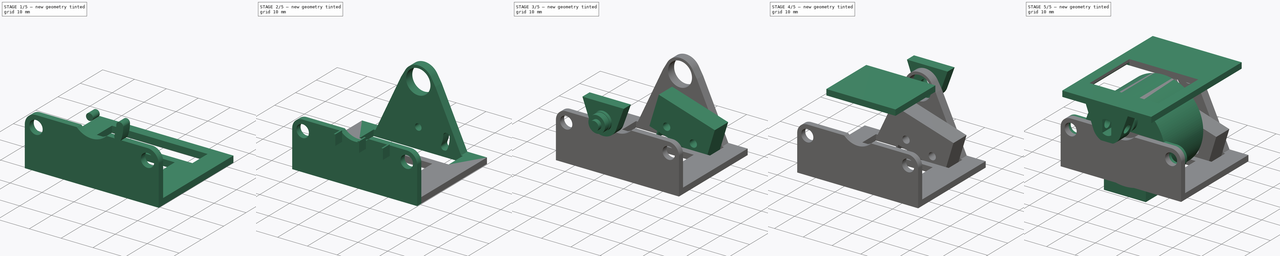
[diagram: build sequence overview — one tinted view per stage of 5, left to right]
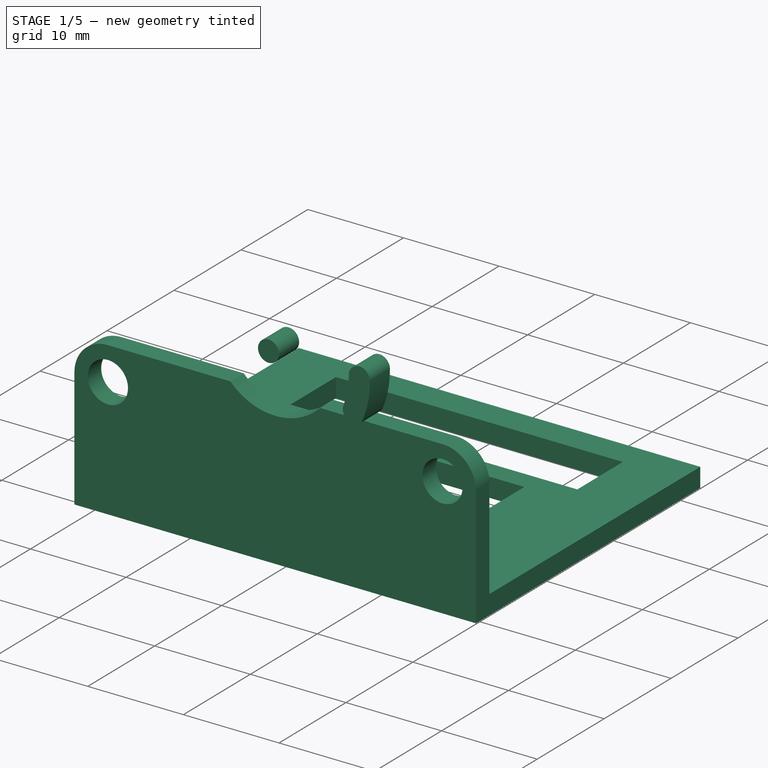
[diagram: stage 1 of 5 — iso view after this stage's code; geometry added in this stage tinted green]
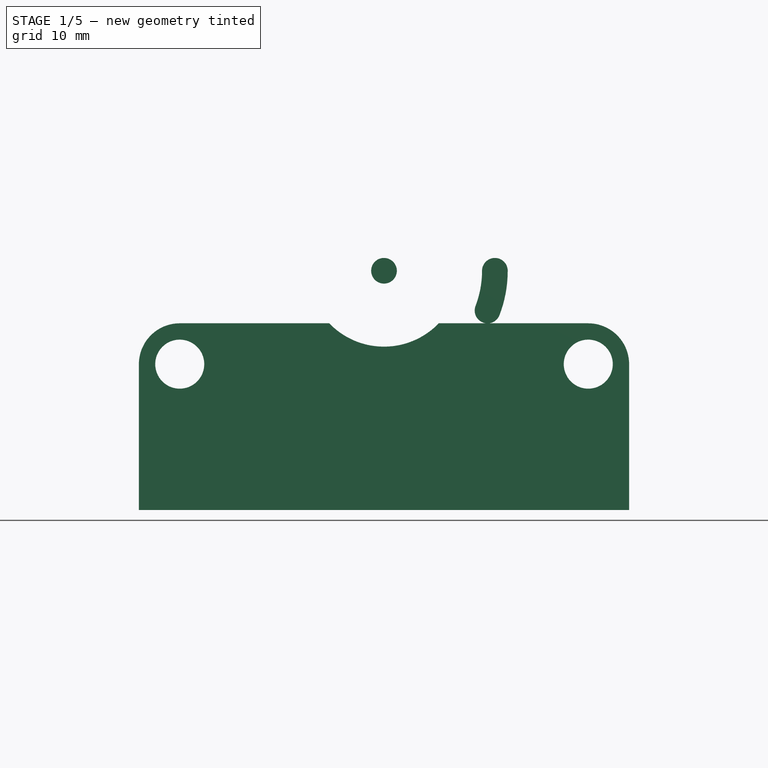
[diagram: stage 1 of 5 — front view after this stage's code; geometry added in this stage tinted green]
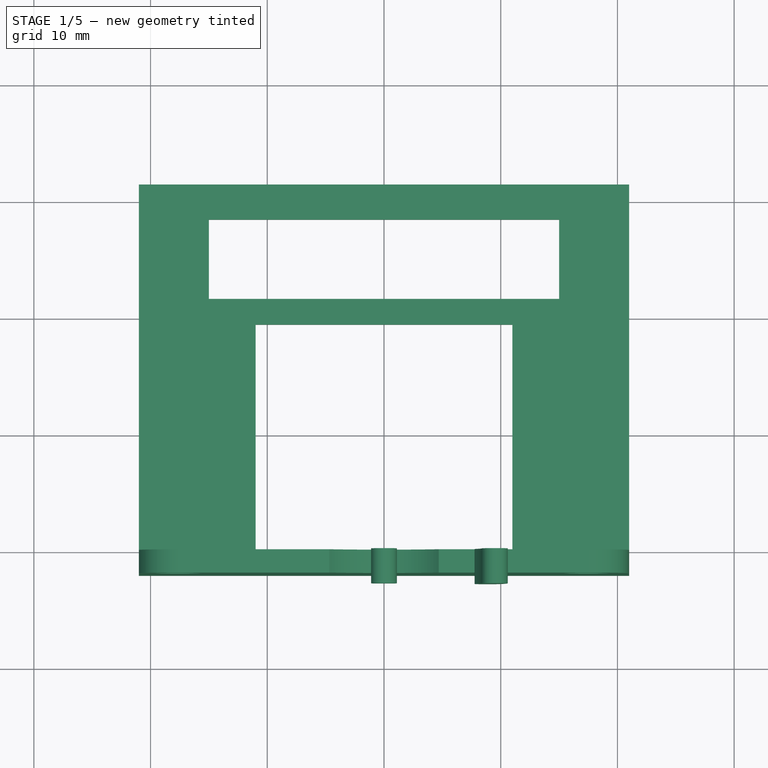
[diagram: stage 1 of 5 — top view after this stage's code; geometry added in this stage tinted green]
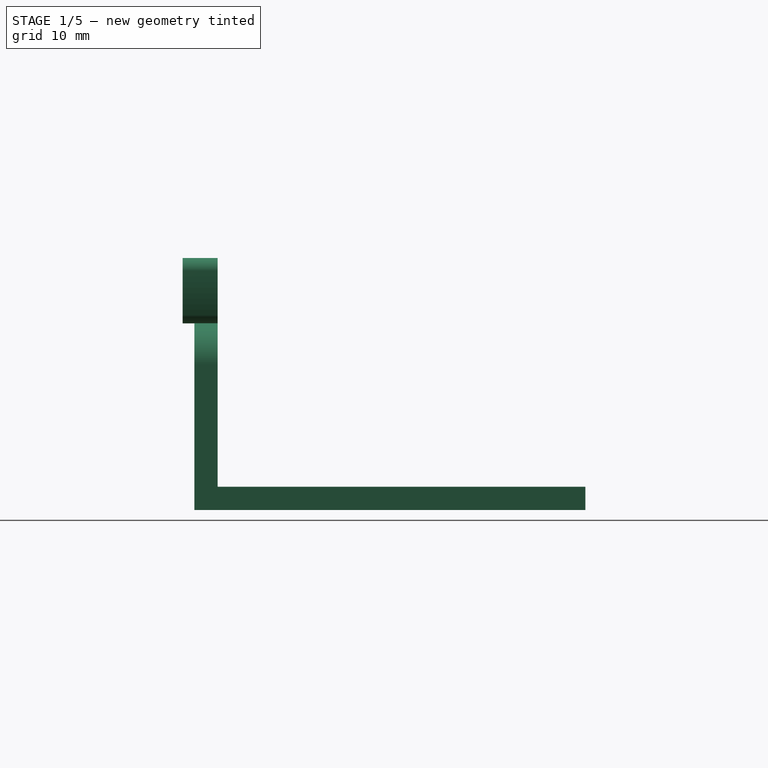
[diagram: stage 1 of 5 — right view after this stage's code; geometry added in this stage tinted green]
FCSTD DOCUMENT  (FreeCAD 0.18R4 (GitTag))
Label: pixle
License: All rights reserved
LicenseURL: http://en.wikipedia.org/wiki/All_rights_reserved
objects: Part::Cylinder×11, Part::Compound×11, Spreadsheet::Sheet×10, Part::Box×10, Part::Cut×10, Sketcher::SketchObject×8, Part::Extrusion×8, Part::MultiFuse×5, Part::Chamfer×1
note: 64 computed .brp shape members not serialized (recipe doc carries the construction recipe); baked Part::Feature solids carry a one-line shape summary decoded from their .brp

FEATURE [Sketcher::SketchObject] Sketch003  label="motorMountSketch"
  Placement = pos=(0,0,0) rot=(1,0,0;1.5708rad)
  expr: Constraints[25] = motorMount_sheet.height - motor_sheet.bracketOutterRadius
  expr: Constraints[17] = motor_sheet.bracketOutterRadius
  expr: Constraints[9] = motor_sheet.bracketLength
  expr: Constraints[16] = motor_sheet.bracketOutterRadius
  expr: Constraints[11] = motor_sheet.bracketOutterRadius
  expr: Constraints[7] = motor_sheet.bracketOutterRadius
  expr: Constraints[5] = consts.m4_shankRadius
  expr: Constraints[4] = consts.m4_shankRadius
  expr: Constraints[3] = motor_sheet.bracketLength
  expr: Constraints[1] = motor_sheet.bracketLength
  expr: Constraints[12] = motor_sheet.bracketLength
  sketch-geometry (8):
    g0: Circle CenterX=17.5 CenterY=0 CenterZ=0 NormalX=0 NormalY=0 NormalZ=1 AngleXU=0 Radius=2.1
    g1: Circle CenterX=-17.5 CenterY=0 CenterZ=0 NormalX=0 NormalY=0 NormalZ=1 AngleXU=0 Radius=2.1
    g2: ArcOfCircle CenterX=-17.5 CenterY=0 CenterZ=0 NormalX=0 NormalY=0 NormalZ=1 AngleXU=0 Radius=3.5 StartAngle=1.5708 EndAngle=3.1416
    g3: ArcOfCircle CenterX=17.5 CenterY=0 CenterZ=0 NormalX=0 NormalY=0 NormalZ=1 AngleXU=0 Radius=3.5 StartAngle=6.28319 EndAngle=7.85398
    g4: LineSegment StartX=-17.5 StartY=3.5 StartZ=0 EndX=17.5 EndY=3.5 EndZ=0
    g5: LineSegment StartX=-21 StartY=-2.25161e-05 StartZ=0 EndX=-21 EndY=-12.5 EndZ=0
    g6: LineSegment StartX=21 StartY=-3.49178e-08 StartZ=0 EndX=21 EndY=-12.5 EndZ=0
    g7: LineSegment StartX=-21 StartY=-12.5 StartZ=0 EndX=21 EndY=-12.5 EndZ=0
  constraints (26):
    c: PointOnObject(g0,g-1)
    c: DistanceX(g0) = 17.5
    c: PointOnObject(g1,g-1)
    c: DistanceX(g1,g-1) = 17.5
    c: Radius(g0) = 2.1
    c: Radius(g1) = 2.1
    c: PointOnObject(g2,g-1)
    c: Radius(g2) = 3.5
    c: Angle(g2) = 1.5708
    c: DistanceX(g2,g-1) = 17.5
    c: PointOnObject(g3,g-1)
    c: Radius(g3) = 3.5
    c: DistanceX(g-1,g3) = 17.5
    c: Angle(g3) = 1.5708
    c: Coincident(g4,g2)
    c: Coincident(g4,g3)
    c: DistanceY(g2) = 3.5
    c: DistanceY(g0,g3) = 3.5
    c: Coincident(g5,g2)
    c: Vertical(g5)
    c: Coincident(g6,g3)
    c: Vertical(g6)
    c: Coincident(g7,g5)
    c: Coincident(g7,g6)
    c: Horizontal(g7)
    c: DistanceY(g5,g5) = 12.5
FEATURE [Part::Extrusion] Extrude004  label="motorMountBase"
  Base = -> Sketch003
  Dir = (0,-1,0)
  DirMode = 0
  FaceMakerClass = Part::FaceMakerBullseye
  LengthFwd = 2
  LengthRev = 0
  Solid = true
  Symmetric = false
  expr: LengthFwd = motorMount_sheet.thickness
FEATURE [Part::Cylinder] Cylinder005  label="motorMountCutout"
  Angle = 360
  AttacherType = Attacher::AttachEngine3D
  Height = 2
  Placement = pos=(0,0,8) rot=(1,0,0;1.5708rad)
  Radius = 6.5
  expr: Radius = motor_sheet.shaftSpacerRadius + motorMount_sheet.cutout
  expr: Placement.Base.z = motor_sheet.shaftOffset
  expr: Height = consts.motorMount_thickness
FEATURE [Part::Cut] Cut004  label="motorMount"
  Base = -> Extrude004
  Placement = pos=(0,0,-8) rot=(0,0,1;0rad)
  Tool = -> Cylinder005
  expr: Placement.Base.z = -motor_sheet.shaftOffset
FEATURE [Part::Box] Box005  label="BottomPlateBase"
  AttacherType = Attacher::AttachEngine3D
  Height = 2
  Length = 42
  Placement = pos=(-21,0,-20.5) rot=(0,0,1;0rad)
  Width = 31.5
  expr: Width = pixleBase_sheet.width
  expr: Length = pixleBase_sheet.length
  expr: Placement.Base.x = -Length / 2
  expr: Height = pixleBase_sheet.plateHeight
  expr: Placement.Base.z = -motor_sheet.shaftOffset - motorMount_sheet.height + motor_sheet.bracketOutterRadius
FEATURE [Part::Box] Box006  label="MotorHole"
  AttacherType = Attacher::AttachEngine3D
  Height = 2
  Length = 22
  Placement = pos=(-11,0,-20.5) rot=(0,0,1;0rad)
  Width = 19.5
  expr: Length = bottomPlate_sheet.motorHole
  expr: Width = motor_sheet.bodyDepth + bottomPlate_sheet.motorHoleTollarance
  expr: Placement.Base.x = -Length / 2
  expr: Placement.Base.z = -motor_sheet.shaftOffset - motorMount_sheet.height + motor_sheet.bracketOutterRadius
  expr: Height = bottomPlate_sheet.thinkness
FEATURE [Sketcher::SketchObject] Sketch006  label="bearingCoupler_limitSwitchMountSketch"
  Placement = pos=(0,0,0) rot=(1,0,0;1.5708rad)
  expr: Constraints[1] = bearingCoupler_sheet.limitSwitchScrewRadius
  expr: Constraints[10] = bearingCoupler_sheet.limitSwitchScrewRadius
  expr: Constraints[13] = limitSwitch_sheet.holeSpacing
  expr: Constraints[7] = limitSwitch_sheet.holeSpacing
  sketch-geometry (5):
    g0: Circle CenterX=0 CenterY=0 CenterZ=0 NormalX=0 NormalY=0 NormalZ=1 AngleXU=0 Radius=1.1
    g1: ArcOfCircle CenterX=0 CenterY=0 CenterZ=0 NormalX=0 NormalY=0 NormalZ=1 AngleXU=0 Radius=8.4 StartAngle=3.14159 EndAngle=3.50811
    g2: ArcOfCircle CenterX=0 CenterY=0 CenterZ=0 NormalX=0 NormalY=0 NormalZ=1 AngleXU=0 Radius=10.6 StartAngle=3.14159 EndAngle=3.50811
    g3: ArcOfCircle CenterX=-9.5 CenterY=0 CenterZ=0 NormalX=0 NormalY=0 NormalZ=1 AngleXU=0 Radius=1.1 StartAngle=0 EndAngle=3.14159
    g4: ArcOfCircle CenterX=-8.86902 CenterY=-3.40448 CenterZ=0 NormalX=0 NormalY=0 NormalZ=1 AngleXU=0 Radius=1.1 StartAngle=3.50811 EndAngle=6.6497
  constraints (15):
    c: Coincident(g0,g-1)
    c: Radius(g0) = 1.1
    c: Coincident(g1,g0)
    c: Coincident(g2,g0)
    c: PointOnObject(g3,g-1)
    c: Coincident(g3,g1)
    c: Coincident(g3,g2)
    c: DistanceX(g3,g0) = 9.5
    c: DistanceY(g1,g0) = 0
    c: DistanceY(g2,g0) = 0
    c: Radius(g3) = 1.1
    c: Coincident(g4,g1)
    c: Coincident(g4,g2)
    c: Distance(g0,g4) = 9.5
    c: Angle(g4) = 3.14159
FEATURE [Part::Extrusion] Extrude007  label="bearingCoupler_limitSwitchMountExtrusion"
  Base = -> Sketch006
  Dir = (0,1,0)
  DirMode = 0
  FaceMakerClass = Part::FaceMakerBullseye
  LengthFwd = 3
  LengthRev = 0
  Placement = pos=(0,0,0) rot=(0,0,1;3.14159rad)
  Solid = true
  Symmetric = false
  expr: LengthFwd = bearingCoupler_sheet.thinkness
FEATURE [Part::Box] Box011  label="LimitSwitchHole"
  AttacherType = Attacher::AttachEngine3D
  Height = 2
  Length = 30
  Placement = pos=(-15,21.7,-20.5) rot=(0,0,1;0rad)
  Width = 6.8
  expr: Length = bottomPlate_sheet.limitSwitchCutoutLength
  expr: Width = limitSwitch_sheet.width + bottomPlate_sheet.limitSwitchCutoutTollarance
  expr: Placement.Base.y = -Width + BottomPlateBase.Width - bearingCoupler_sheet.thinkness
  expr: Placement.Base.x = -Length / 2
  expr: Height = bottomPlate_sheet.thinkness
  expr: Placement.Base.z = -motor_sheet.shaftOffset - motorMount_sheet.height + motor_sheet.bracketOutterRadius
FEATURE [Part::Compound] Compound001  label="BottomPlateCutouts"
  Links = -> [Box006,Box011]
FEATURE [Part::Cut] Cut012  label="bottomPlate"
  Base = -> Box005
  Tool = -> Compound001
FEATURE [Spreadsheet::Sheet] Spreadsheet008  label="bottomPlate_sheet"
  cells = A1=thinkness; B1(thinkness)==2mm; A3=limitSwitchCutoutLength; B3(limitSwitchCutoutLength)==30mm; A4=limitSwitchCutoutTollarance; B4(limitSwitchCutoutTollarance)==0.3mm; A6=motorHole; B6(motorHole)==22mm; A7=motorHoleTollarance; B7(motorHoleTollarance)==0.5mm
FEATURE [Part::Compound] Compound010  label="bottomPlate_compound"
  Links = -> [Spreadsheet008,Cut012]
FEATURE [Spreadsheet::Sheet] Spreadsheet009  label="motorMount_sheet"
  cells = A1=height; B1(height)==16mm; A2=thickness; B2(thickness)==2mm; A3=cutout; B3(cutout)==2mm
FEATURE [Part::Compound] Compound011  label="motorMount_compound"
  Links = -> [Spreadsheet009,Cut004]
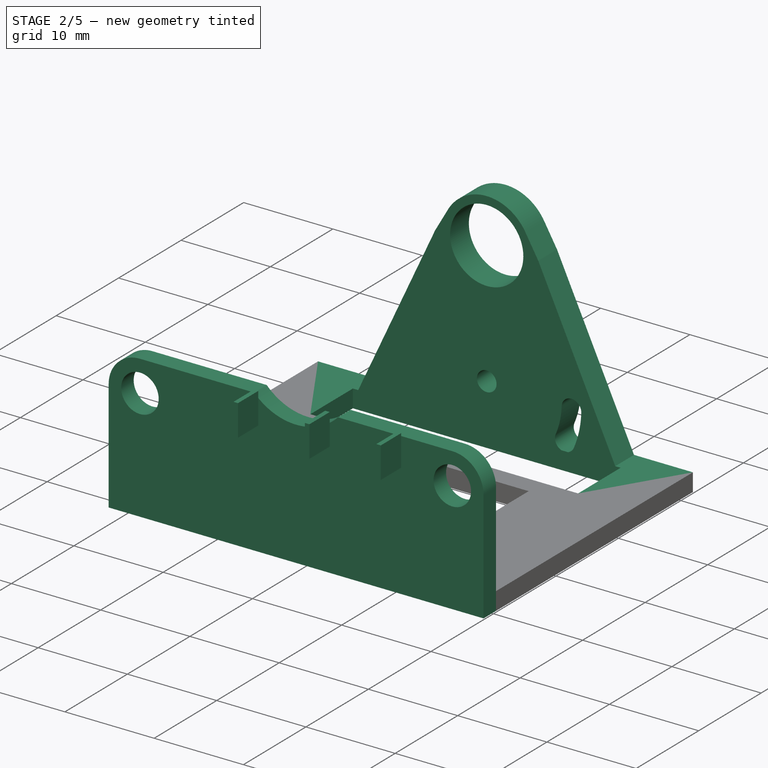
[diagram: stage 2 of 5 — iso view after this stage's code; geometry added in this stage tinted green]
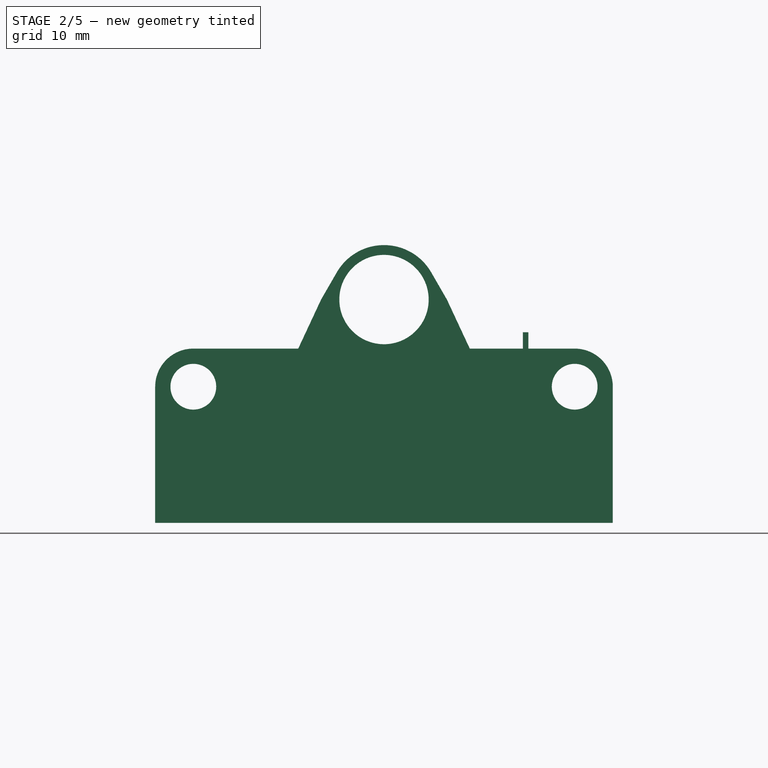
[diagram: stage 2 of 5 — front view after this stage's code; geometry added in this stage tinted green]
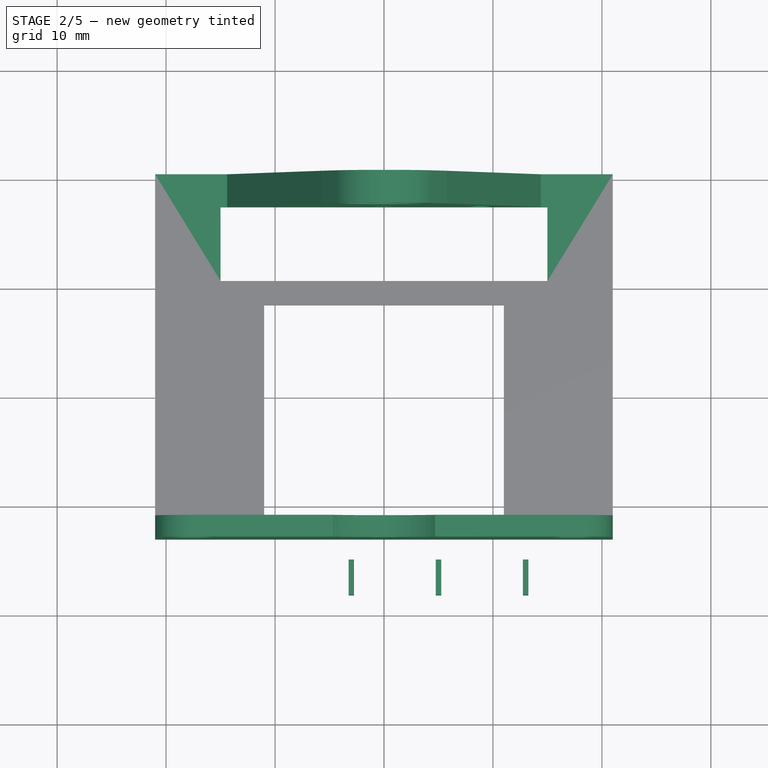
[diagram: stage 2 of 5 — top view after this stage's code; geometry added in this stage tinted green]
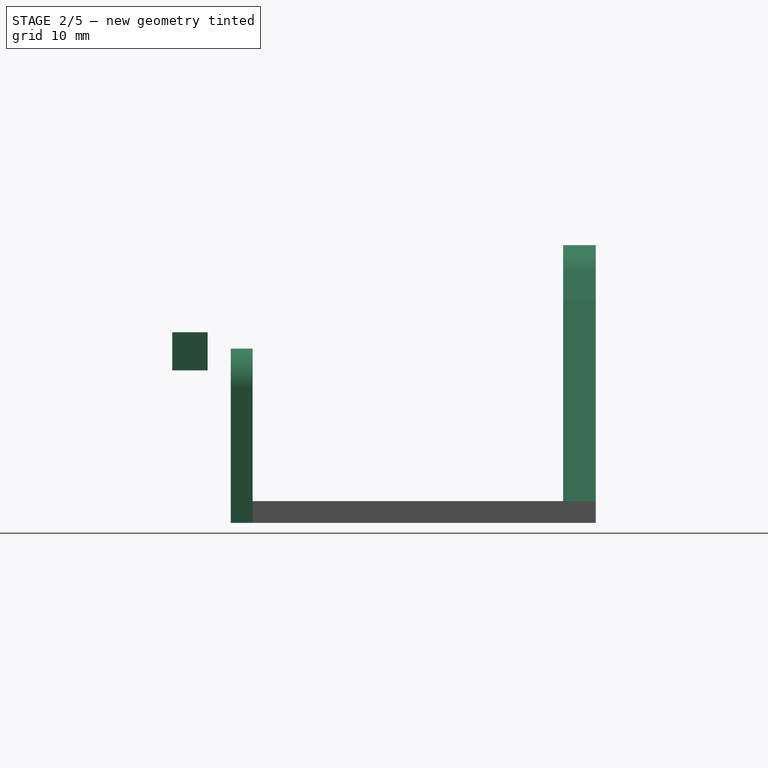
[diagram: stage 2 of 5 — right view after this stage's code; geometry added in this stage tinted green]
FEATURE [Sketcher::SketchObject] Sketch004  label="bearingCoupler_bracketSketch"
  Placement = pos=(0,0,0) rot=(-1,0,0;1.5708rad)
  expr: Constraints.bottom_radius = bearingCoupler_sheet.bracketBottomRadius
  expr: Constraints.left_bottom_out_vlength = bearingCoupler_sheet.bracketSketchBottomRadius * sin(90deg - bearingCoupler_sheet.bracketBottomArcAngle / 2)
  expr: Constraints.right_bottom_out_vlength = bearingCoupler_sheet.bracketSketchBottomRadius * sin(90deg - bearingCoupler_sheet.bracketBottomArcAngle / 2)
  expr: Constraints.left_top_angle = 180deg - bearingCoupler_sheet.bracketSketchTopAngle
  expr: Constraints.left_bottom_out_angle = 180deg - Constraints.right_bottom_out_angle
  expr: Constraints.right_bottom_out_angle = bearingCoupler_sheet.bracketBottomArcAngle / 2
  expr: Constraints.right_top_angle = bearingCoupler_sheet.bracketSketchTopAngle
  expr: Constraints.bottom_arc_angle = bearingCoupler_sheet.bracketBottomArcAngle
  expr: Constraints.right_top_vlength = bearingCoupler_sheet.bracketSketchTopVLength
  expr: Constraints.left_top_vlength = bearingCoupler_sheet.bracketSketchTopVLength
  sketch-geometry (6):
    g0: ArcOfCircle CenterX=0 CenterY=0 CenterZ=0 NormalX=0 NormalY=0 NormalZ=1 AngleXU=0 Radius=5 StartAngle=3.66519 EndAngle=5.75959
    g1: LineSegment StartX=4.33013 StartY=-2.5 StartZ=0 EndX=5.7735 EndY=-1.8e-15 EndZ=0
    g2: LineSegment StartX=-4.33013 StartY=-2.5 StartZ=0 EndX=-5.7735 EndY=9e-16 EndZ=0
    g3: LineSegment StartX=5.7735 StartY=-1.8e-15 StartZ=0 EndX=15.3328 EndY=20.5 EndZ=0
    g4: LineSegment StartX=-5.7735 StartY=9e-16 StartZ=0 EndX=-15.3328 EndY=20.5 EndZ=0
    g5: LineSegment StartX=-15.3328 StartY=20.5 StartZ=0 EndX=15.3328 EndY=20.5 EndZ=0
  constraints (18):
    c: Coincident(g0,g-1)
    c: Radius(g0) = 5  'bottom_radius'
    c: Angle(g0) = 2.0944  'bottom_arc_angle'
    c: Coincident(g1,g0)
    c: Angle(g1) = 1.0472  'right_bottom_out_angle'
    c: Coincident(g2,g0)
    c: Angle(g2) = 2.0944  'left_bottom_out_angle'
    c: DistanceY(g1,g1) = 2.5  'right_bottom_out_vlength'
    c: DistanceY(g2,g2) = 2.5  'left_bottom_out_vlength'
    c: Coincident(g3,g1)
    c: Angle(g3) = 1.13446  'right_top_angle'
    c: DistanceY(g3,g3) = 20.5  'right_top_vlength'
    c: Coincident(g4,g2)
    c: Angle(g4) = 2.00713  'left_top_angle'
    c: DistanceY(g4,g4) = 20.5  'left_top_vlength'
    c: Coincident(g5,g4)
    c: Coincident(g5,g3)
    c: Horizontal(g5)
FEATURE [Part::Extrusion] Extrude005  label="bearingCoupler_bracketBase"
  Base = -> Sketch004
  Dir = (0,-1,0)
  DirMode = 0
  FaceMakerClass = Part::FaceMakerBullseye
  LengthFwd = 3
  LengthRev = 0
  Solid = true
  Symmetric = false
  expr: LengthFwd = bearingCoupler_sheet.thinkness
FEATURE [Part::Cylinder] Cylinder007  label="bearingCoupler_bearingHole"
  Angle = 360
  AttacherType = Attacher::AttachEngine3D
  Height = 3
  Placement = pos=(0,0,0) rot=(1,0,0;1.5708rad)
  Radius = 4.1
  expr: Radius = consts.bearing_main_radius + Spreadsheet007.bearingTollarance
  expr: Height = bearingCoupler_sheet.thinkness
FEATURE [Part::Cut] Cut006  label="bearingCoupler_Bracket"
  Base = -> Extrude005
  Tool = -> Cylinder007
FEATURE [Part::Box] Box007  label="LimitSwitchBase"
  AttacherType = Attacher::AttachEngine3D
  Height = 11
  Length = 20
  Placement = pos=(-5.25,0,-3) rot=(0,0,1;0rad)
  Width = 6.5
  expr: Placement.Base.x = -(Length / 2) + limitSwitch_sheet.holeSpacing / 2
  expr: Placement.Base.z = -limitSwitch_sheet.holeZOffset
  expr: Height = limitSwitch_sheet.height
  expr: Width = limitSwitch_sheet.width
  expr: Length = limitSwitch_sheet.length
FEATURE [Part::Box] Box008  label="LimitSwitchLead001"
  AttacherType = Attacher::AttachEngine3D
  Height = 3.5
  Length = 0.5
  Placement = pos=(4.75,1.625,-6.5) rot=(0,0,1;0rad)
  Width = 3.25
  expr: Placement.Base.x = LimitSwitchBase.Placement.Base.x + LimitSwitchBase.Length / 2
  expr: Placement.Base.y = limitSwitch_sheet.width / 2 - Width / 2
  expr: Placement.Base.z = -Height - limitSwitch_sheet.holeZOffset
  expr: Height = limitSwitch_sheet.leadHeight
  expr: Width = limitSwitch_sheet.leadWidth
  expr: Length = limitSwitch_sheet.leadLength
FEATURE [Part::Box] Box009  label="LimitSwitchLead003"
  AttacherType = Attacher::AttachEngine3D
  Height = 3.5
  Length = 0.5
  Placement = pos=(12.75,1.625,-6.5) rot=(0,0,1;0rad)
  Width = 3.25
  expr: Placement.Base.x = LimitSwitchBase.Placement.Base.x + LimitSwitchBase.Length / 2 + limitSwitch_sheet.leadSpacing / 2
  expr: Placement.Base.y = limitSwitch_sheet.width / 2 - Width / 2
  expr: Placement.Base.z = -Height - limitSwitch_sheet.holeZOffset
  expr: Height = limitSwitch_sheet.leadHeight
  expr: Width = limitSwitch_sheet.leadWidth
  expr: Length = limitSwitch_sheet.leadLength
FEATURE [Part::Box] Box010  label="LimitSwitchLead002"
  AttacherType = Attacher::AttachEngine3D
  Height = 3.5
  Length = 0.5
  Placement = pos=(-3.25,1.625,-6.5) rot=(0,0,1;0rad)
  Width = 3.25
  expr: Placement.Base.x = LimitSwitchBase.Placement.Base.x + LimitSwitchBase.Length / 2 - limitSwitch_sheet.leadSpacing / 2
  expr: Placement.Base.y = limitSwitch_sheet.width / 2 - Width / 2
  expr: Placement.Base.z = -Height - limitSwitch_sheet.holeZOffset
  expr: Height = limitSwitch_sheet.leadHeight
  expr: Width = limitSwitch_sheet.leadWidth
  expr: Length = limitSwitch_sheet.leadLength
FEATURE [Part::MultiFuse] Fusion006  label="bearingCoupler_limitSwitchMount"
  Placement = pos=(0,0,-13.75) rot=(0,1,0;0.034907rad)
  Shapes = -> [Extrude007]
  expr: Placement.Rotation.Angle = bearingCoupler_sheet.limitSwitchAngle
  expr: Placement.Base.z = bearingCoupler_sheet.limitSwitchOffsetZ
FEATURE [Part::Cut] Cut013  label="bearingCoupler_bracket&LimitMount"
  Base = -> Cut006
  Placement = pos=(0,31.5,0) rot=(0,0,1;0rad)
  Tool = -> Fusion006
  expr: Placement.Base.y = BottomPlateBase.Width
FEATURE [Spreadsheet::Sheet] Spreadsheet006  label="pixleBase_sheet"
  cells = A1=offset; B1(offset)==motorCoupler_sheet.bracketThickness + motor_sheet.shaftCrossOffset + motor_sheet.shaftSpacerDepth; A2=length; B2(length)==2 * motor_sheet.bracketLength + 2 * motor_sheet.bracketOutterRadius; A3=width; B3(width)==topPlate_sheet.width - offset - bearingBracket_sheet.thickness - bearingBracket_sheet.spacerDepth; A4=plateHeight; B4(plateHeight)==2mm
FEATURE [Spreadsheet::Sheet] Spreadsheet007  label="bearingCoupler_sheet"
  cells = A1=thinkness; B1(thinkness)==consts.bearing_main_depth; A3=limitSwitchScrewRadius; B3(limitSwitchScrewRadius)==consts.m2_shankRadius; A4=limitSwitchOffsetZ; B4(limitSwitchOffsetZ)==-13.75mm; A5=limitSwitchAngle; B5(limitSwitchAngle)==2deg; A7=bearingTollarance; B7(bearingTollarance)==0.1mm; A9=bracketSketchBottomRadius; B9(bracketBottomRadius)==5mm; A10=bracketSketchBottomArcAngle; B10(bracketBottomArcAngle)==120deg; A11=bracketSketchBottomRadius; B11(bracketSketchBottomRadius)==5mm; A12=bracketSketchTopAngle; B12(bracketSketchTopAngle)==65deg; A13=bracketSketchTopVLength; B13(bracketSketchTopVLength)==motor_sheet.shaftOffset + motorMount_sheet.height - motor_sheet.bracketOutterRadius
FEATURE [Part::Compound] Compound009  label="bearingCoupler"
  Links = -> [Spreadsheet007,Cut013]
FEATURE [Part::Compound] Compound008  label="pixleBase"
  Links = -> [Spreadsheet006,Compound009,Compound010,Compound011]
  Placement = pos=(0,9,0) rot=(0,0,1;0rad)
  expr: Placement.Base.y = pixleBase_sheet.offset
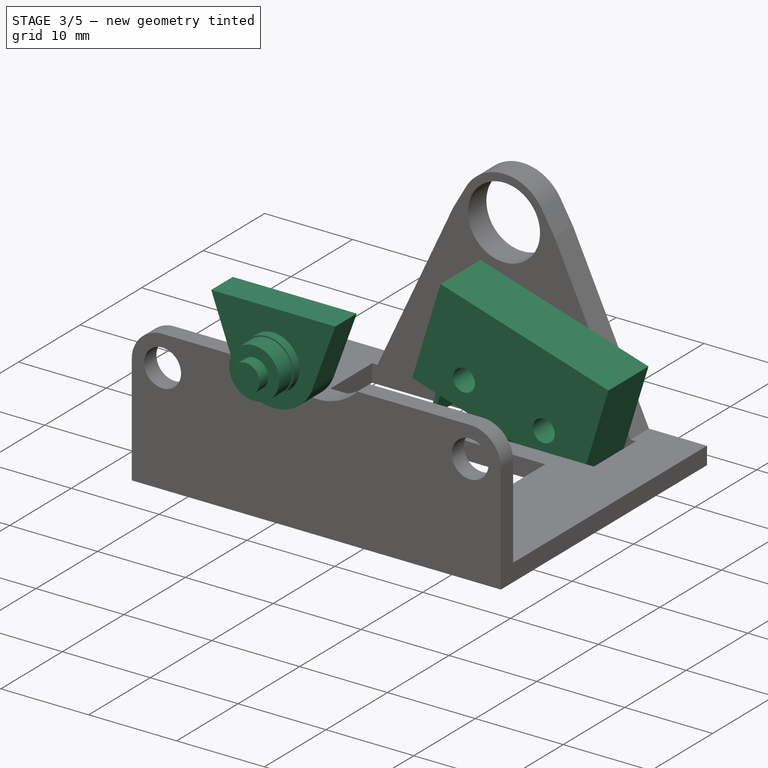
[diagram: stage 3 of 5 — iso view after this stage's code; geometry added in this stage tinted green]
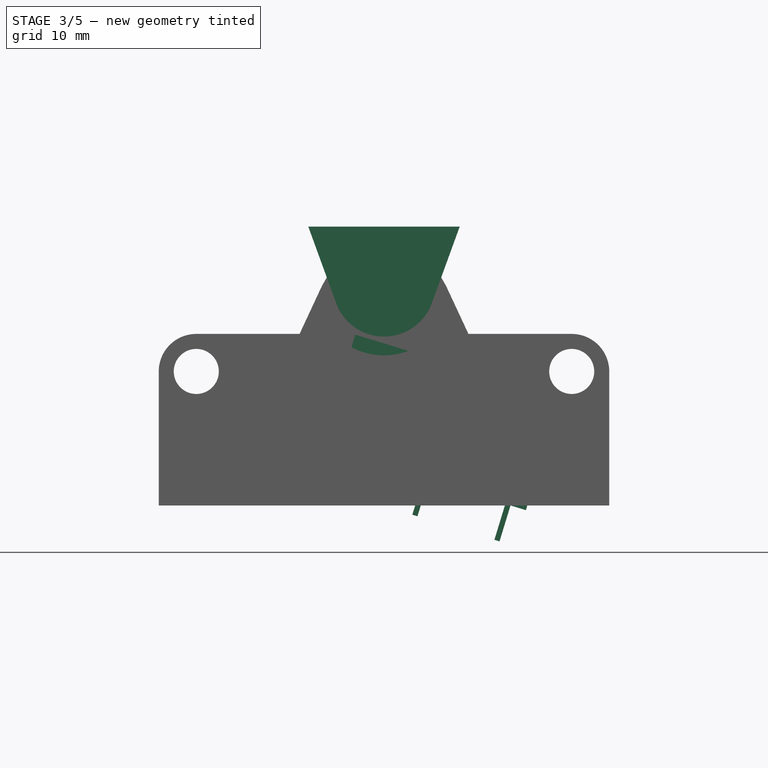
[diagram: stage 3 of 5 — front view after this stage's code; geometry added in this stage tinted green]
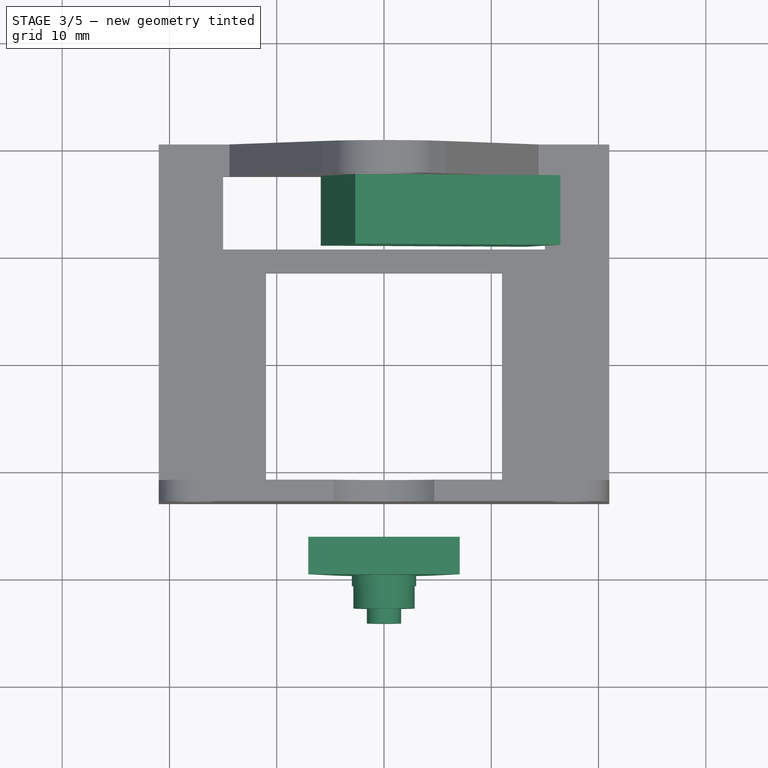
[diagram: stage 3 of 5 — top view after this stage's code; geometry added in this stage tinted green]
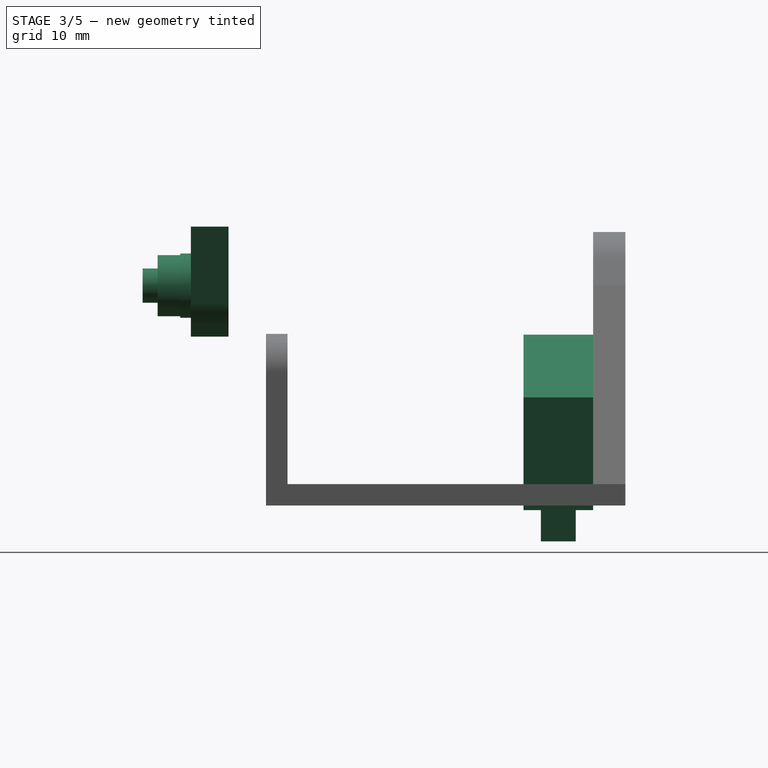
[diagram: stage 3 of 5 — right view after this stage's code; geometry added in this stage tinted green]
FEATURE [Spreadsheet::Sheet] Spreadsheet  label="consts"
  cells = A1=Flanged Ball Bearing; A2=bearing_tollarance; B2(bearing_tollarance)==0.1mm; C2=Printing Tollarance; A3=bearing_main_radius; B3(bearing_main_radius)==4mm; A4=bearing_main_depth; B4(bearing_main_depth)==3mm; A5=bearing_flange_radius; B5(bearing_flange_radius)==4.75mm; C5=Spec Radius of Flange; A6=bearing_flange_depth; B6(bearing_flange_depth)==1mm; C6=Flange Depth; A7=bearing_inner_radius; B7(bearing_inner_radius)==3mm; A8=bearing_hole_radius; B8(bearing_hole_radius)==1.5mm; A11=Bracket; A12=bracket_bottom_radius; B12(bracket_bottom_radius)==4.75mm; A13=bracket_bottom_arc_angle; B13(bracket_bottom_arc_angle)==140deg; A14=bracket_top_angle; B14(bracket_top_angle)==70deg; A15=bracket_top_vlength; B15(bracket_top_vlength)==5.5mm; A16=bracket_thickness; B16(bracket_thickness)==4mm; A18=Screws; A19=m2_shankRadius; B19(m2_shankRadius)==1.1mm; C19=M2 shank radius with enough tollarance to freely insert the screw; A20=m3_shankRadius; B20(m3_shankRadius)==1.6mm; A21=m3_tappingRadius; B21(m3_tappingRadius)==1.48mm; C21=M3 shank radius with a lower tollarance to self-tap when inserting the screw; A22=m3_headRadius; B22(m3_headRadius)==2.85mm; A23=m3_headHeight; B23(m3_headHeight)==3.1mm; A24=m4_shankRadius; B24(m4_shankRadius)==2.1mm
FEATURE [Sketcher::SketchObject] Sketch001  label="bearingBracket_sketch"
  Placement = pos=(0,0,0) rot=(1,0,0;1.5708rad)
  expr: Constraints.left_bottom_out_vlength = consts.bracket_bottom_radius * sin(90deg - consts.bracket_bottom_arc_angle / 2)
  expr: Constraints.right_bottom_out_vlength = consts.bracket_bottom_radius * sin(90deg - consts.bracket_bottom_arc_angle / 2)
  expr: Constraints.left_top_angle = 180deg - consts.bracket_top_angle
  expr: Constraints.left_bottom_out_angle = 180deg - Constraints.right_bottom_out_angle
  expr: Constraints.right_bottom_out_angle = consts.bracket_bottom_arc_angle / 2
  expr: Constraints.right_top_angle = consts.bracket_top_angle
  expr: Constraints.bottom_arc_angle = consts.bracket_bottom_arc_angle
  expr: Constraints.bottom_radius = consts.bracket_bottom_radius
  expr: Constraints.right_top_vlength = consts.bracket_top_vlength
  expr: Constraints.left_top_vlength = consts.bracket_top_vlength
  sketch-geometry (6):
    g0: ArcOfCircle CenterX=0 CenterY=0 CenterZ=0 NormalX=0 NormalY=0 NormalZ=1 AngleXU=0 Radius=4.75 StartAngle=3.49066 EndAngle=5.93412
    g1: LineSegment StartX=4.46354 StartY=-1.6246 StartZ=0 EndX=5.05484 EndY=-9e-16 EndZ=0
    g2: LineSegment StartX=-4.46354 StartY=-1.6246 StartZ=0 EndX=-5.05484 EndY=-1.6e-15 EndZ=0
    g3: LineSegment StartX=5.05484 StartY=-9e-16 StartZ=0 EndX=7.05668 EndY=5.5 EndZ=0
    g4: LineSegment StartX=-5.05484 StartY=-1.6e-15 StartZ=0 EndX=-7.05668 EndY=5.5 EndZ=0
    g5: LineSegment StartX=-7.05668 StartY=5.5 StartZ=0 EndX=7.05668 EndY=5.5 EndZ=0
  constraints (18):
    c: Coincident(g0,g-1)
    c: Radius(g0) = 4.75  'bottom_radius'
    c: Angle(g0) = 2.44346  'bottom_arc_angle'
    c: Coincident(g1,g0)
    c: Angle(g1) = 1.22173  'right_bottom_out_angle'
    c: Coincident(g2,g0)
    c: Angle(g2) = 1.91986  'left_bottom_out_angle'
    c: DistanceY(g1,g1) = 1.6246  'right_bottom_out_vlength'
    c: DistanceY(g2,g2) = 1.6246  'left_bottom_out_vlength'
    c: Coincident(g3,g1)
    c: Angle(g3) = 1.22173  'right_top_angle'
    c: DistanceY(g3,g3) = 5.5  'right_top_vlength'
    c: Coincident(g4,g2)
    c: Angle(g4) = 1.91986  'left_top_angle'
    c: DistanceY(g4,g4) = 5.5  'left_top_vlength'
    c: Coincident(g5,g4)
    c: Coincident(g5,g3)
    c: Horizontal(g5)
FEATURE [Part::Cylinder] Cylinder001  label="bearingBracket_spacer"
  Angle = 360
  AttacherType = Attacher::AttachEngine3D
  Height = 1
  Placement = pos=(0,0,0) rot=(1,0,0;1.5708rad)
  Radius = 3
  expr: Height = bearingBracket_sheet.spacerDepth
  expr: Radius = bearingBracket_sheet.spacerRadius
FEATURE [Part::Extrusion] Extrude001  label="bearingBracket_excursion"
  Base = -> Sketch001
  Dir = (0,1,0)
  DirMode = 0
  FaceMakerClass = Part::FaceMakerBullseye
  LengthFwd = 3.5
  LengthRev = 0
  Solid = true
  Symmetric = false
  expr: LengthFwd = bearingBracket_sheet.thickness
FEATURE [Part::Cylinder] Cylinder008  label="LimitSwitchMountingHole001"
  Angle = 360
  AttacherType = Attacher::AttachEngine3D
  Height = 6.5
  Placement = pos=(0,0,0) rot=(-1,0,0;1.5708rad)
  Radius = 1.25
  expr: Height = limitSwitch_sheet.width
  expr: Radius = limitSwitch_sheet.holeRadius
FEATURE [Part::Cylinder] Cylinder009  label="LimitSwitchMountingHole002"
  Angle = 360
  AttacherType = Attacher::AttachEngine3D
  Height = 6.5
  Placement = pos=(9.5,0,0) rot=(-1,0,0;1.5708rad)
  Radius = 1.25
  expr: Height = limitSwitch_sheet.width
  expr: Placement.Base.x = limitSwitch_sheet.holeSpacing
  expr: Radius = limitSwitch_sheet.holeRadius
FEATURE [Part::Cut] Cut007  label="LimitSwitchCut"
  Base = -> Box007
  Tool = -> Cylinder008
FEATURE [Part::Cut] Cut008  label="LimitSwitchBody"
  Base = -> Cut007
  Tool = -> Cylinder009
FEATURE [Sketcher::SketchObject] Sketch005  label="limitSwitch_leverSketch"
  Placement = pos=(0,0,0) rot=(1,0,0;1.5708rad)
  sketch-geometry (2):
    g0: LineSegment StartX=-0.000113 StartY=0 StartZ=0 EndX=12.4999 EndY=0 EndZ=0
    g1: ArcOfCircle CenterX=16.2502 CenterY=0 CenterZ=0 NormalX=0 NormalY=0 NormalZ=1 AngleXU=0 Radius=3.75 StartAngle=0 EndAngle=3.14159
  constraints (8):
    c: PointOnObject(g0,g-1)
    c: Horizontal(g0)
    c: Distance(g0) = 12.5
    c: DistanceX(g0) = -0.000113
    c: PointOnObject(g1,g-1)
    c: PointOnObject(g1,g-1)
    c: Radius(g1) = 3.75
    c: PointOnObject(g1,g0)
FEATURE [Part::Extrusion] Extrude006  label="limitSwitch_lever"
  Base = -> Sketch005
  Dir = (0,1,0)
  DirMode = 0
  FaceMakerClass = Part::FaceMakerBullseye
  LengthFwd = 4
  LengthRev = 0
  Placement = pos=(-3.25,1.25,8) rot=(0,-1,0;0.314159rad)
  Solid = false
  Symmetric = false
  expr: LengthFwd = limitSwitch_sheet.leverWidth
  expr: Placement.Rotation.Angle = limitSwitch_sheet.leverAngle
  expr: Placement.Base.x = LimitSwitchBase.Placement.Base.x + LimitSwitchBase.Length / 2 - limitSwitch_sheet.leverXOffest
  expr: Placement.Base.y = limitSwitch_sheet.width / 2 - LengthFwd / 2
  expr: Placement.Base.z = limitSwitch_sheet.height - limitSwitch_sheet.holeZOffset
FEATURE [Part::MultiFuse] Fusion005  label="limitSwitch_noLever"
  Shapes = -> [Cut008,Box008,Box010,Box009]
FEATURE [Part::Cylinder] Cylinder010  label="bearingBracket_m3Shank"
  Angle = 360
  AttacherType = Attacher::AttachEngine3D
  Height = 4.5
  Placement = pos=(0,0,0) rot=(1,0,0;1.5708rad)
  Radius = 1.6
  expr: Height = bearingBracket_sheet.thickness + bearingBracket_sheet.spacerDepth
  expr: Radius = consts.m3_shankRadius
FEATURE [Part::Cylinder] Cylinder011  label="bearingBracket_m3Head"
  Angle = 360
  AttacherType = Attacher::AttachEngine3D
  Height = 3.1
  Placement = pos=(0,0,0) rot=(1,0,0;1.5708rad)
  Radius = 2.85
  expr: Height = consts.m3_headHeight
  expr: Radius = consts.m3_headRadius
FEATURE [Part::MultiFuse] Fusion001  label="bearingBracket_base"
  Shapes = -> [Extrude001,Cylinder001]
FEATURE [Spreadsheet::Sheet] Spreadsheet005  label="limitSwitch_sheet"
  cells = A1=length; B1(length)==20mm; A2=width; B2(width)==6.5mm; A3=height; B3(height)==11mm; A4=holeRadius; B4(holeRadius)==1.25mm; A5=holeSpacing; B5(holeSpacing)==9.5mm; A6=holeZOffset; B6(holeZOffset)==3mm; A7=leadLength; B7(leadLength)==0.5mm; A8=leadWidth; B8(leadWidth)==3.25mm; A9=leadHeight; B9(leadHeight)==3.5mm; A10=leadSpacing; B10(leadSpacing)==16mm; A11=leverWidth; B11(leverWidth)==4mm; A12=leverXOffest; B12(leverXOffest)==8mm; A13=leverAngle; B13(leverAngle)==18deg; A15=offset; B15(offset)==pixleBase_sheet.offset + pixleBase_sheet.width - limitSwitch_sheet.width - bearingCoupler_sheet.thinkness
FEATURE [Part::Compound] Compound  label="limitSwitch"
  Links = -> [Spreadsheet005,Fusion005,Extrude006]
  Placement = pos=(0,31,-13.75) rot=(0,1,0;0.296706rad)
  expr: Placement.Base.z = bearingCoupler_sheet.limitSwitchOffsetZ
  expr: Placement.Base.y = limitSwitch_sheet.offset
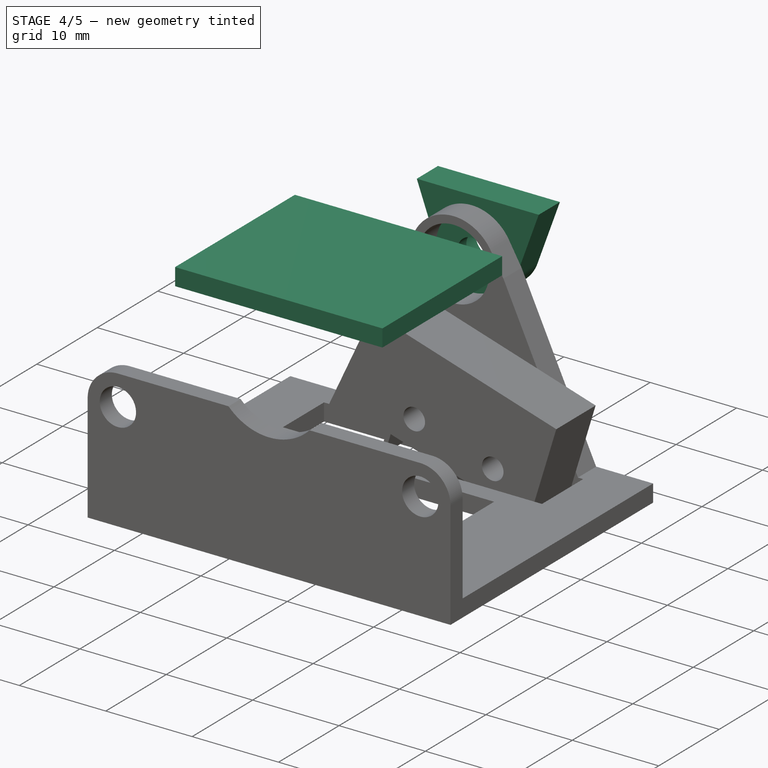
[diagram: stage 4 of 5 — iso view after this stage's code; geometry added in this stage tinted green]
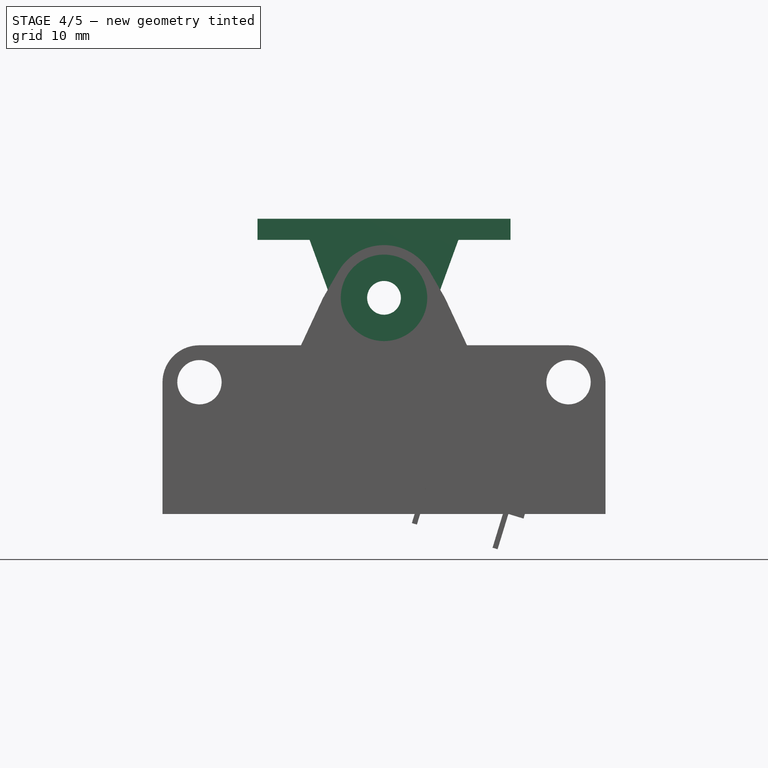
[diagram: stage 4 of 5 — front view after this stage's code; geometry added in this stage tinted green]
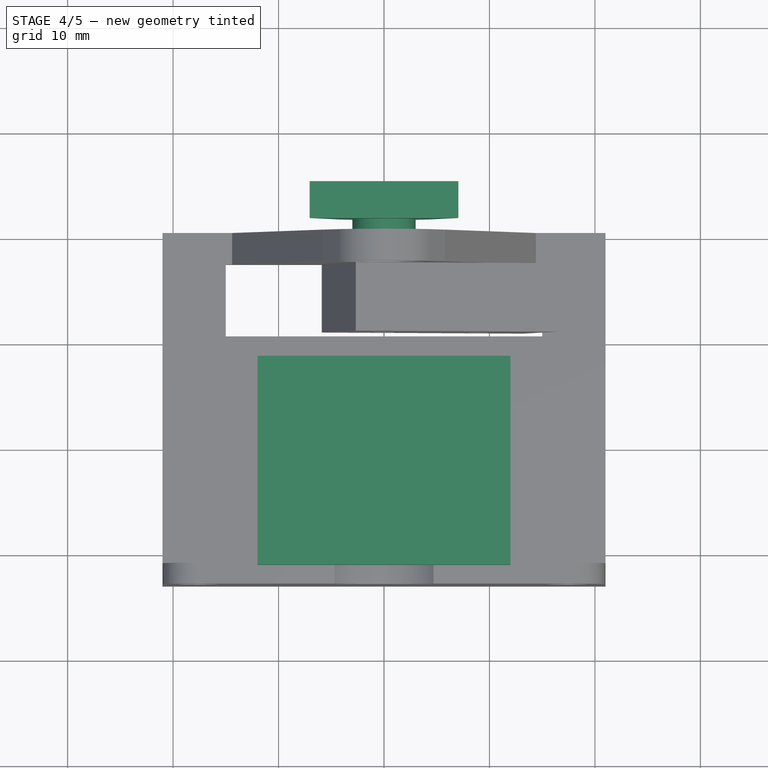
[diagram: stage 4 of 5 — top view after this stage's code; geometry added in this stage tinted green]
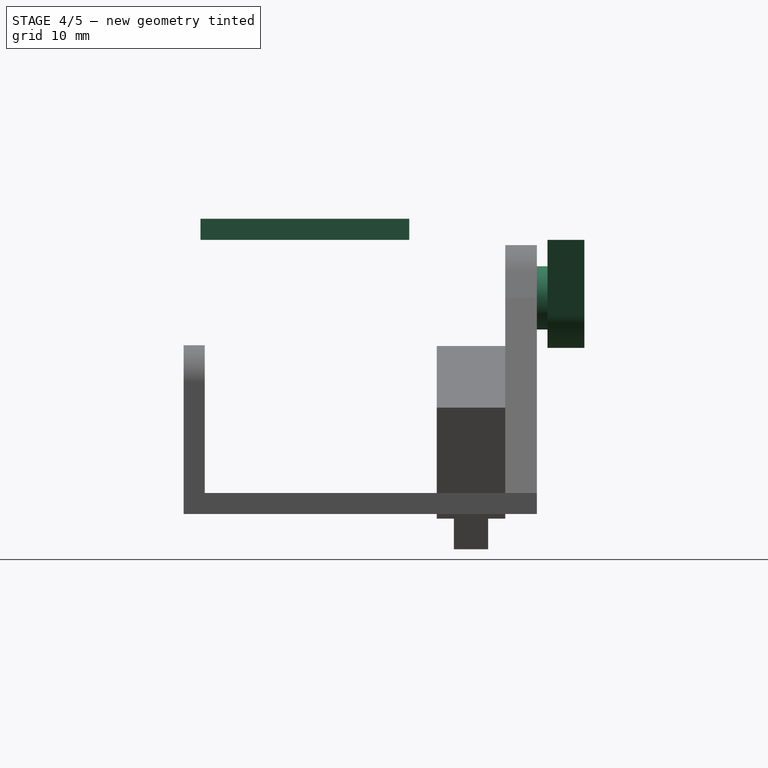
[diagram: stage 4 of 5 — right view after this stage's code; geometry added in this stage tinted green]
FEATURE [Part::Box] Box002  label="topPlate_base"
  AttacherType = Attacher::AttachEngine3D
  Height = 2
  Length = 31
  Placement = pos=(-15.5,0,5.5) rot=(0,0,1;0rad)
  Width = 45
  expr: Placement.Base.x = -topPlate_sheet.length / 2
  expr: Length = topPlate_sheet.length
  expr: Placement.Base.z = consts.bracket_top_vlength
  expr: Height = topPlate_sheet.height
  expr: Width = topPlate_sheet.width
FEATURE [Part::Cylinder] Cylinder002  label="motor_shaft_spacer"
  Angle = 360
  AttacherType = Attacher::AttachEngine3D
  Height = 1.5
  Placement = pos=(0,-1.5,8) rot=(-1,0,0;1.5708rad)
  Radius = 4.5
  expr: Placement.Base.y = -motor_sheet.shaftSpacerDepth
  expr: Placement.Base.z = motor_sheet.shaftOffset
  expr: Height = motor_sheet.shaftSpacerDepth
  expr: Radius = motor_sheet.shaftSpacerRadius
FEATURE [Part::Cylinder] Cylinder003  label="motor_body"
  Angle = 360
  AttacherType = Attacher::AttachEngine3D
  Height = 19
  Placement = pos=(0,0,0) rot=(-1,0,0;1.5708rad)
  Radius = 14
  expr: Height = motor_sheet.bodyDepth
  expr: Radius = motor_sheet.bodyRadius
FEATURE [Sketcher::SketchObject] Sketch
  Placement = pos=(0,0,0) rot=(1,0,0;1.5708rad)
  expr: Constraints[19] = motor_sheet.bracketOutterRadius
  expr: Constraints[18] = motor_sheet.bracketOutterRadius
  expr: Constraints[11] = motor_sheet.bracketOutterRadius
  expr: Constraints[7] = motor_sheet.bracketOutterRadius
  expr: Constraints[5] = motor_sheet.bracketHoleRadius
  expr: Constraints[4] = motor_sheet.bracketHoleRadius
  expr: Constraints[3] = motor_sheet.bracketLength
  expr: Constraints[9] = motor_sheet.bracketLength
  expr: Constraints[1] = motor_sheet.bracketLength
  expr: Constraints[12] = motor_sheet.bracketLength
  sketch-geometry (6):
    g0: Circle CenterX=17.5 CenterY=0 CenterZ=0 NormalX=0 NormalY=0 NormalZ=1 AngleXU=0 Radius=2.1
    g1: Circle CenterX=-17.5 CenterY=0 CenterZ=0 NormalX=0 NormalY=0 NormalZ=1 AngleXU=0 Radius=2.1
    g2: ArcOfCircle CenterX=-17.5 CenterY=0 CenterZ=0 NormalX=0 NormalY=0 NormalZ=1 AngleXU=0 Radius=3.5 StartAngle=1.5708 EndAngle=4.71239
    g3: ArcOfCircle CenterX=17.5 CenterY=0 CenterZ=0 NormalX=0 NormalY=0 NormalZ=1 AngleXU=0 Radius=3.5 StartAngle=4.71239 EndAngle=7.85398
    g4: LineSegment StartX=-17.5 StartY=3.5 StartZ=0 EndX=17.5 EndY=3.5 EndZ=0
    g5: LineSegment StartX=-17.5 StartY=-3.5 StartZ=0 EndX=17.5 EndY=-3.5 EndZ=0
  constraints (20):
    c: PointOnObject(g0,g-1)
    c: DistanceX(g0) = 17.5
    c: PointOnObject(g1,g-1)
    c: DistanceX(g1,g-1) = 17.5
    c: Radius(g0) = 2.1
    c: Radius(g1) = 2.1
    c: PointOnObject(g2,g-1)
    c: Radius(g2) = 3.5
    c: Angle(g2) = 3.14159
    c: DistanceX(g2,g-1) = 17.5
    c: PointOnObject(g3,g-1)
    c: Radius(g3) = 3.5
    c: DistanceX(g-1,g3) = 17.5
    c: Angle(g3) = 3.14159
    c: Coincident(g4,g2)
    c: Coincident(g4,g3)
    c: Coincident(g5,g2)
    c: Coincident(g5,g3)
    c: DistanceY(g2) = 3.5
    c: DistanceY(g0,g3) = 3.5
FEATURE [Part::Extrusion] Extrude002  label="motor_bracket"
  Base = -> Sketch
  Dir = (0,1,0)
  DirMode = 0
  FaceMakerClass = Part::FaceMakerBullseye
  LengthFwd = 1
  LengthRev = 0
  Solid = true
  Symmetric = false
FEATURE [Part::Box] Box003  label="motor_base"
  AttacherType = Attacher::AttachEngine3D
  Height = 17
  Length = 14.6
  Placement = pos=(-7.3,0,-17) rot=(0,0,1;0rad)
  Width = 16.5
  expr: Width = motor_sheet.baseWidth
  expr: Length = motor_sheet.baseLength
  expr: Placement.Base.x = -Length / 2
  expr: Height = motor_sheet.baseHeight
  expr: Placement.Base.z = -Height
FEATURE [Part::Cylinder] Cylinder004  label="motor_shaft_part"
  Angle = 360
  AttacherType = Attacher::AttachEngine3D
  Height = 2.5
  Placement = pos=(0,-4,8) rot=(-1,0,0;1.5708rad)
  Radius = 2.5
  expr: Placement.Base.y = -motor_sheet.shaftSpacerDepth - motor_sheet.shaftCrossOffset
  expr: Placement.Base.z = motor_sheet.shaftOffset
  expr: Height = motor_sheet.shaftCrossOffset
  expr: Radius = motor_sheet.shaftRadius
FEATURE [Part::MultiFuse] Fusion003  label="motor"
  Placement = pos=(0,9,-8) rot=(0,0,1;0rad)
  Shapes = -> [Cylinder002,Cylinder004,Cylinder003,Extrude002,Box003]
  expr: Placement.Base.y = motor_shaft_spacer.Height + motor_shaft_part.Height + motorCoupler_sheet.bracketThickness
  expr: Placement.Base.z = -consts.motor_shaft_offset
FEATURE [Part::Box] Box004  label="topPlate_cutout"
  AttacherType = Attacher::AttachEngine3D
  Height = 2
  Length = 24
  Placement = pos=(-12,8.6,5.5) rot=(0,0,1;0rad)
  Width = 19.8
  expr: Length = topPlate_sheet.cutoutLength
  expr: Width = topPlate_sheet.cutoutWidth
  expr: Height = topPlate_base.Height
  expr: Placement.Base.z = consts.bracket_top_vlength
  expr: Placement.Base.y = motor.Placement.Base.y - topPlate_sheet.cutoutTollarance
  expr: Placement.Base.x = -Length / 2
FEATURE [Part::MultiFuse] Fusion  label="bearingBracket_m3Cutout"
  Placement = pos=(0,3.5,0) rot=(0,0,1;0rad)
  Shapes = -> [Cylinder010,Cylinder011]
  expr: Placement.Base.y = bearingBracket_sheet.thickness
FEATURE [Part::Cut] Cut011  label="bearingBracket"
  Base = -> Fusion001
  Placement = pos=(0,41.5,0) rot=(0,0,1;0rad)
  Tool = -> Fusion
  expr: Placement.Base.y = topPlate_base.Width - bearingBracket_sheet.thickness
FEATURE [Spreadsheet::Sheet] Spreadsheet004  label="bearingBracket_sheet"
  cells = A1=thickness; B1(thickness)==3.5mm; A3=spacerRadius; B3(spacerRadius)==3mm; A4=spacerDepth; B4(spacerDepth)==1mm
FEATURE [Part::Compound] Compound006  label="bearingBracket_compound"
  Links = -> [Spreadsheet004,Cut011]
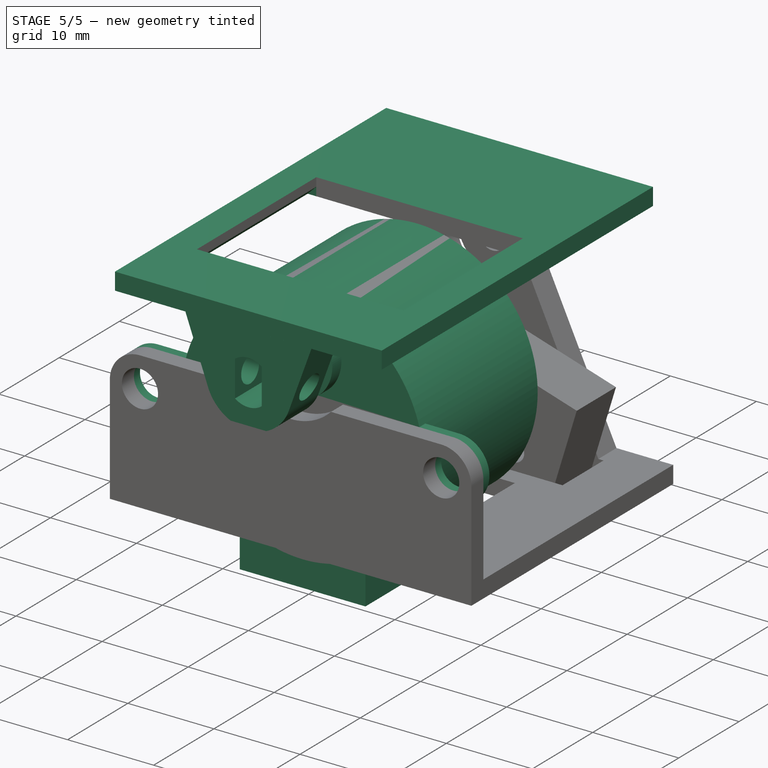
[diagram: stage 5 of 5 — iso view after this stage's code; geometry added in this stage tinted green]
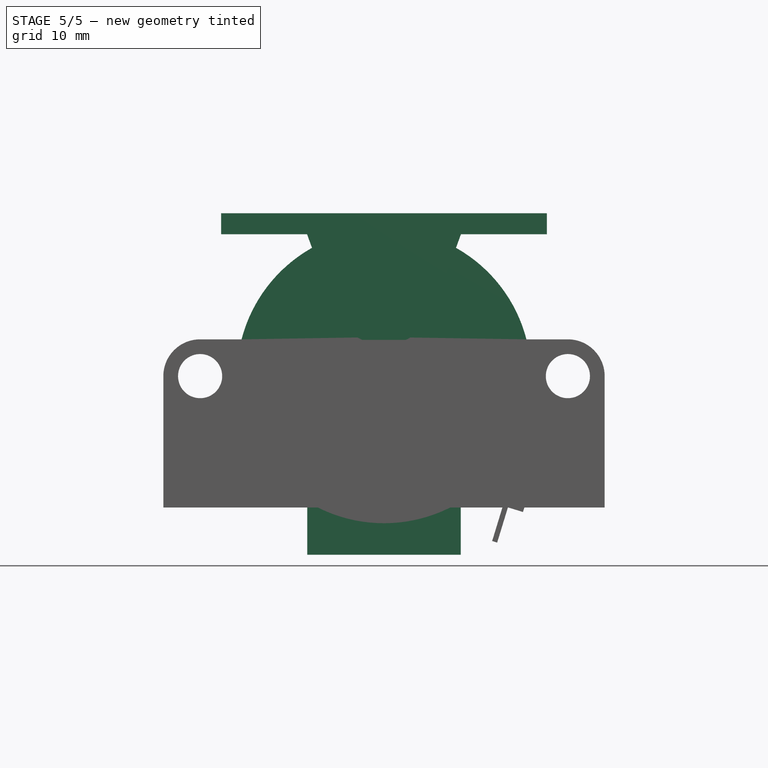
[diagram: stage 5 of 5 — front view after this stage's code; geometry added in this stage tinted green]
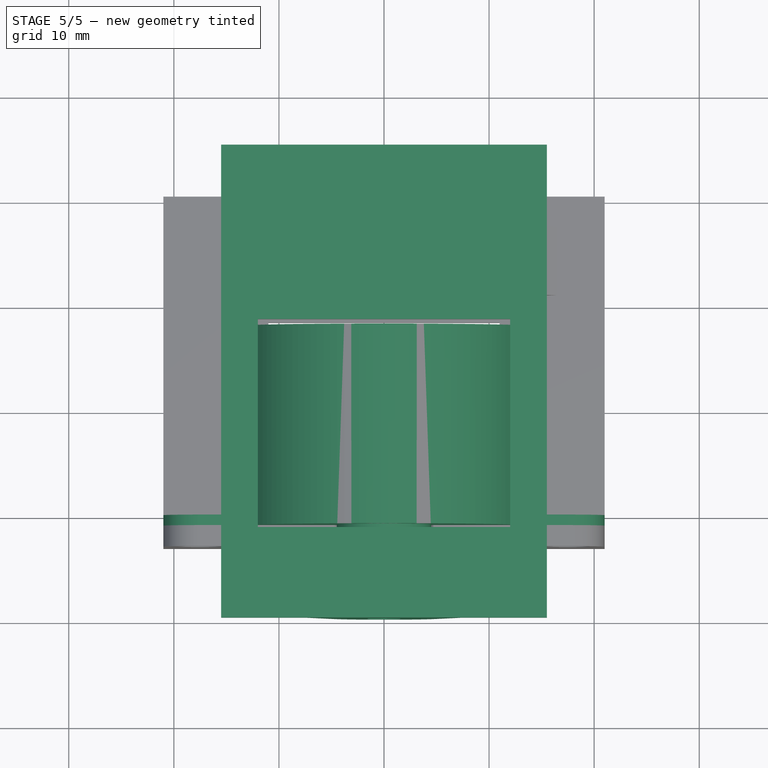
[diagram: stage 5 of 5 — top view after this stage's code; geometry added in this stage tinted green]
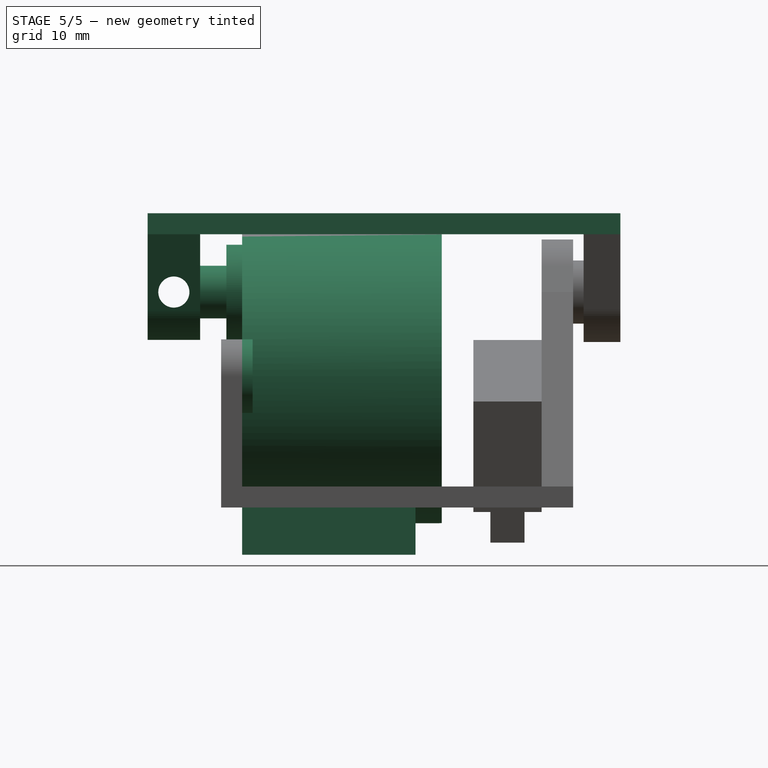
[diagram: stage 5 of 5 — right view after this stage's code; geometry added in this stage tinted green]
FEATURE [Part::Cut] Cut014  label="topPlate_noChamfer"
  Base = -> Box002
  Tool = -> Box004
FEATURE [Part::Chamfer] Chamfer  label="topPlate"
  Base = -> Cut014
  Edges = 2 edges r=1: [Edge17,Edge19]
FEATURE [Sketcher::SketchObject] Sketch007  label="motorCoupler_sketch"
  Placement = pos=(0,0,0) rot=(1,0,0;1.5708rad)
  expr: Constraints.left_bottom_out_vlength = consts.bracket_bottom_radius * sin(90deg - consts.bracket_bottom_arc_angle / 2)
  expr: Constraints.right_bottom_out_vlength = consts.bracket_bottom_radius * sin(90deg - consts.bracket_bottom_arc_angle / 2)
  expr: Constraints.left_top_angle = 180deg - consts.bracket_top_angle
  expr: Constraints.left_bottom_out_angle = 180deg - Constraints.right_bottom_out_angle
  expr: Constraints.right_bottom_out_angle = consts.bracket_bottom_arc_angle / 2
  expr: Constraints.right_top_angle = consts.bracket_top_angle
  expr: Constraints.right_top_vlength = consts.bracket_top_vlength
  expr: Constraints.left_top_vlength = consts.bracket_top_vlength
  sketch-geometry (8):
    g0: LineSegment StartX=4.72871 StartY=-1.6246 StartZ=0 EndX=5.32001 EndY=0 EndZ=0
    g1: LineSegment StartX=-4.72871 StartY=-1.6246 StartZ=0 EndX=-5.32001 EndY=0 EndZ=0
    g2: LineSegment StartX=5.32001 StartY=0 StartZ=0 EndX=7.32185 EndY=5.5 EndZ=0
    g3: LineSegment StartX=-5.32001 StartY=0 StartZ=0 EndX=-7.32185 EndY=5.5 EndZ=0
    g4: LineSegment StartX=-7.32185 StartY=5.5 StartZ=0 EndX=7.32185 EndY=5.5 EndZ=0
    g5: ArcOfCircle CenterX=0 CenterY=0 CenterZ=0 NormalX=0 NormalY=0 NormalZ=1 AngleXU=0 Radius=5 StartAngle=3.47252 EndAngle=4.28488
    g6: ArcOfCircle CenterX=0 CenterY=0 CenterZ=0 NormalX=0 NormalY=0 NormalZ=1 AngleXU=0 Radius=5 StartAngle=5.1399 EndAngle=5.95226
    g7: LineSegment StartX=-2.07304 StartY=-4.55 StartZ=0 EndX=2.07304 EndY=-4.55 EndZ=0
  constraints (24):
    c: Angle(g0) = 1.22173  'right_bottom_out_angle'
    c: Angle(g1) = 1.91986  'left_bottom_out_angle'
    c: DistanceY(g0,g0) = 1.6246  'right_bottom_out_vlength'
    c: DistanceY(g1,g1) = 1.6246  'left_bottom_out_vlength'
    c: Coincident(g2,g0)
    c: Angle(g2) = 1.22173  'right_top_angle'
    c: DistanceY(g2,g2) = 5.5  'right_top_vlength'
    c: Coincident(g3,g1)
    c: Angle(g3) = 1.91986  'left_top_angle'
    c: DistanceY(g3,g3) = 5.5  'left_top_vlength'
    c: Coincident(g4,g3)
    c: Coincident(g4,g2)
    c: Horizontal(g4)
    c: Coincident(g5,g-1)
    c: Coincident(g5,g1)
    c: Radius(g5) = 5
    c: Coincident(g6,g5)
    c: Coincident(g6,g0)
    c: Radius(g6) = 5
    c: Coincident(g7,g5)
    c: Coincident(g7,g6)
    c: DistanceY(g1) = 0
    c: DistanceY(g6,g5) = 4.55
    c: Angle(g7) = 0
FEATURE [Part::Extrusion] Extrude  label="motorCoupler_extrude"
  Base = -> Sketch007
  Dir = (0,1,0)
  DirMode = 0
  FaceMakerClass = Part::FaceMakerBullseye
  LengthFwd = 5
  LengthRev = 0
  Solid = true
  Symmetric = false
  expr: LengthFwd = Spreadsheet001.bracketThickness
FEATURE [Part::Cylinder] Cylinder012  label="motorCoupler_couplerShaft"
  Angle = 360
  AttacherType = Attacher::AttachEngine3D
  Height = 12
  Placement = pos=(-6,2.5,0) rot=(0,1,0;1.5708rad)
  Radius = 1.48
  expr: Placement.Base.x = -Height / 2
  expr: Placement.Base.y = motorCoupler_sheet.bracketThickness / 2
  expr: Radius = motorCoupler_sheet.couplerShaftRadius
FEATURE [Spreadsheet::Sheet] Spreadsheet001  label="motorCoupler_sheet"
  cells = A2=bracketThickness; B2(bracketThickness)==5mm; A3=motorShaftTollarance; B3(motorShaftTollarance)==0.1mm; A4=couplerShaftRadius; B4(couplerShaftRadius)==consts.m3_tappingRadius
FEATURE [Sketcher::SketchObject] Sketch008  label="motorCoupler_motorShaftSketch"
  MapMode = 3
  Placement = pos=(0,0,0) rot=(0.57735,0.57735,-0.57735;2.0944rad)
  expr: Constraints[3] = motor_sheet.shaftRadius + motorCoupler_sheet.motorShaftTollarance
  expr: Constraints[10] = motor_sheet.shaftCrossHeight + motorCoupler_sheet.motorShaftTollarance
  expr: Constraints[2] = motor_sheet.shaftRadius + motorCoupler_sheet.motorShaftTollarance
  sketch-geometry (4):
    g0: ArcOfCircle CenterX=0 CenterY=0 CenterZ=0 NormalX=0 NormalY=0 NormalZ=1 AngleXU=0 Radius=2.6 StartAngle=5.64448 EndAngle=6.92189
    g1: ArcOfCircle CenterX=0 CenterY=0 CenterZ=0 NormalX=0 NormalY=0 NormalZ=1 AngleXU=0 Radius=2.6 StartAngle=2.50289 EndAngle=3.78029
    g2: LineSegment StartX=-2.08746 StartY=1.55 StartZ=0 EndX=2.08746 EndY=1.55 EndZ=0
    g3: LineSegment StartX=-2.08746 StartY=-1.55 StartZ=0 EndX=2.08746 EndY=-1.55 EndZ=0
  constraints (12):
    c: Coincident(g0,g-1)
    c: Coincident(g1,g0)
    c: Radius(g0) = 2.6
    c: Radius(g1) = 2.6
    c: Coincident(g2,g1)
    c: Coincident(g2,g0)
    c: Horizontal(g2)
    c: Coincident(g3,g1)
    c: Coincident(g3,g0)
    c: Horizontal(g3)
    c: DistanceY(g0,g1) = 3.1
    c: Equal(g2,g3)
FEATURE [Spreadsheet::Sheet] Spreadsheet002  label="motor_sheet"
  cells = A1=bodyRadius; B1(bodyRadius)==14mm; A2=bodyDepth; B2(bodyDepth)==19mm; A3=shaftOffset; B3(shaftOffset)==8mm; A4=shaftSpacerRadius; B4(shaftSpacerRadius)==4.5mm; A5=shaftSpacerDepth; B5(shaftSpacerDepth)==1.5mm; A6=shaftRadius; B6(shaftRadius)==2.5mm; A7=shaftCrossOffset; B7(shaftCrossOffset)==2.5mm; A8=shaftCrossHeight; B8(shaftCrossHeight)==3mm; A9=bracketLength; B9(bracketLength)==17.5mm; A10=bracketHoleRadius; B10(bracketHoleRadius)==2.1mm; A11=bracketOutterRadius; B11(bracketOutterRadius)==3.5mm; A12=baseLength; B12(baseLength)==14.6mm; A13=baseWidth; B13(baseWidth)==16.5mm; A14=baseHeight; B14(baseHeight)==17mm
FEATURE [Part::Compound] Compound003  label="motor_compound"
  Links = -> [Spreadsheet002,Fusion003]
FEATURE [Part::Extrusion] Extrude008  label="motorCoupler_motorShaft"
  Base = -> Sketch008
  Dir = (0,1,0)
  DirMode = 0
  FaceMakerClass = Part::FaceMakerBullseye
  LengthFwd = 5
  LengthRev = 0
  Solid = true
  Symmetric = false
  expr: LengthFwd = motorCoupler_sheet.bracketThickness
FEATURE [Part::Cut] Cut017  label="motorCoupler_bracket"
  Base = -> Extrude
  Tool = -> Extrude008
FEATURE [Part::Cut] Cut018  label="motorCoupler"
  Base = -> Cut017
  Tool = -> Cylinder012
FEATURE [Part::Compound] Compound004  label="motorCoupler_compound"
  Links = -> [Spreadsheet001,Cut018]
FEATURE [Spreadsheet::Sheet] Spreadsheet003  label="topPlate_sheet"
  cells = A1=length; B1(length)==31mm; A2=width; B2(width)==45mm; A3=height; B3(height)==2mm; A5=cutoutTollarance; B5(cutoutTollarance)==0.4mm; A6=cutoutLength; B6(cutoutLength)==24mm; A7=cutoutWidth; B7(cutoutWidth)==2 * topPlate_sheet.cutoutTollarance + motor_sheet.bodyDepth
FEATURE [Part::Compound] Compound005  label="topPlate_compound"
  Links = -> [Spreadsheet003,Chamfer]
FEATURE [Part::Compound] Compound007  label="pixleTop"
  Links = -> [Compound006,Compound005,Compound004]
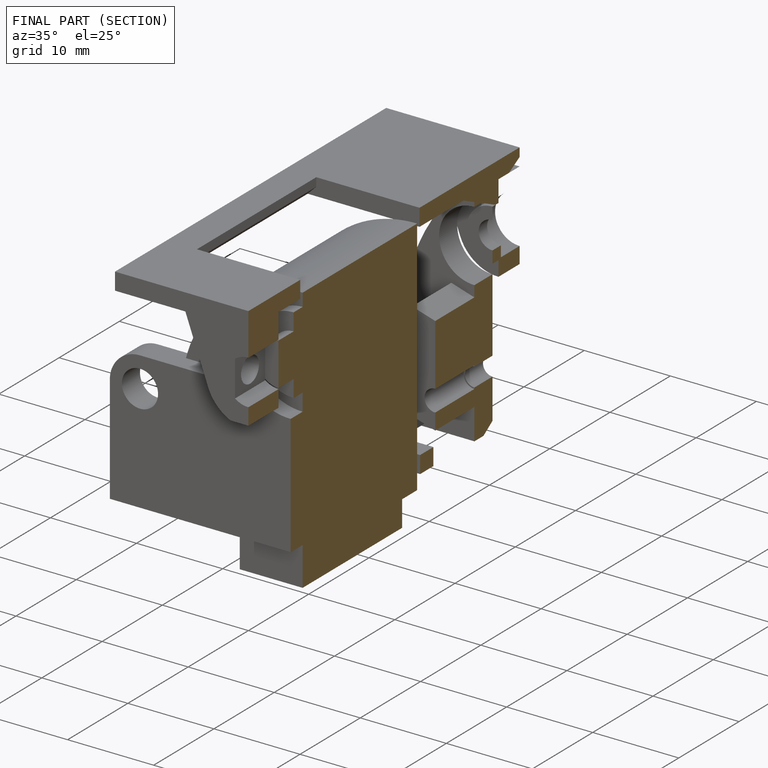
[diagram: finished part — half-section view (interior)]
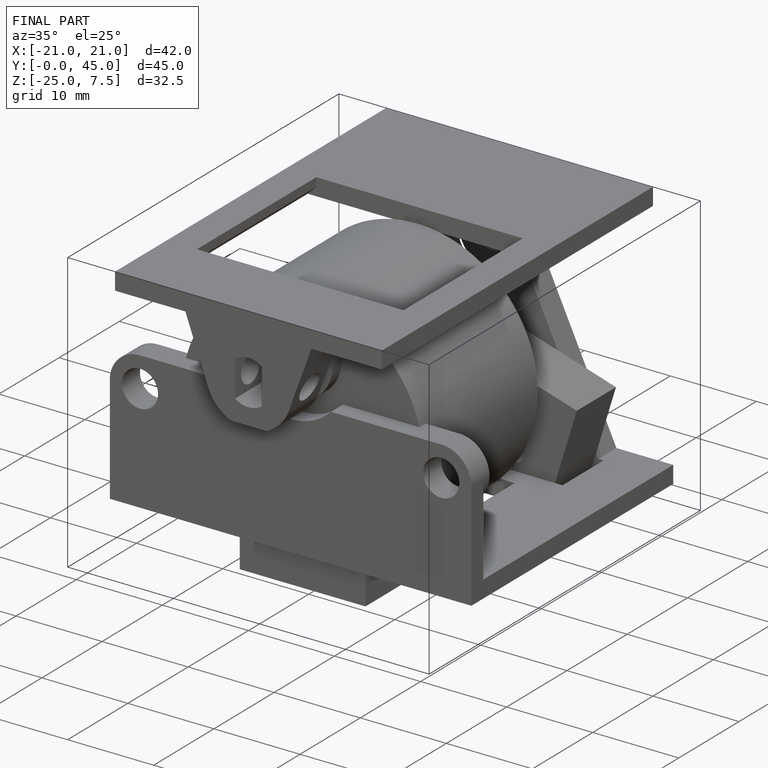
[diagram: finished part — iso view with bounding-box wireframe]
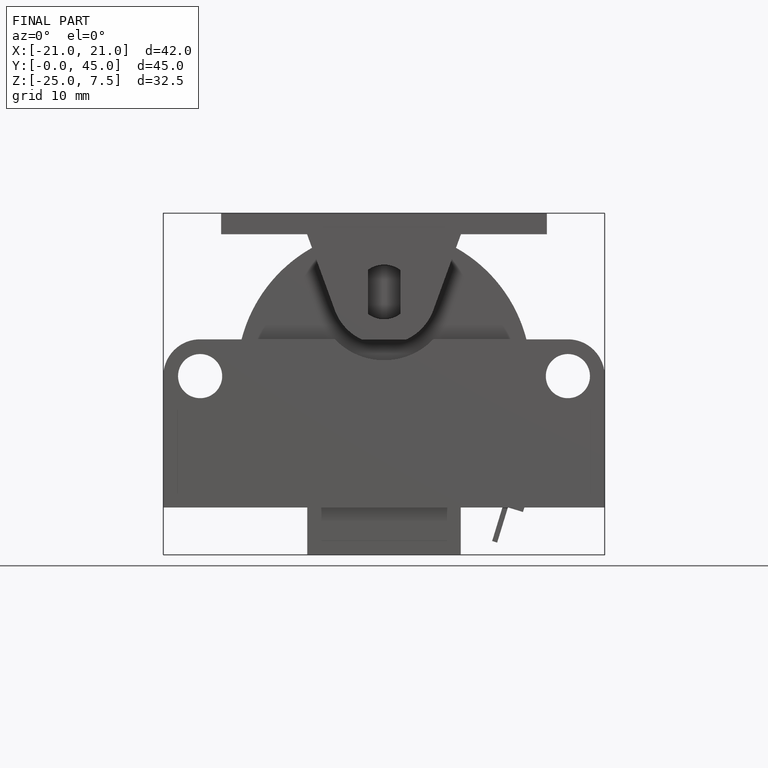
[diagram: finished part — front view with bounding-box wireframe]
